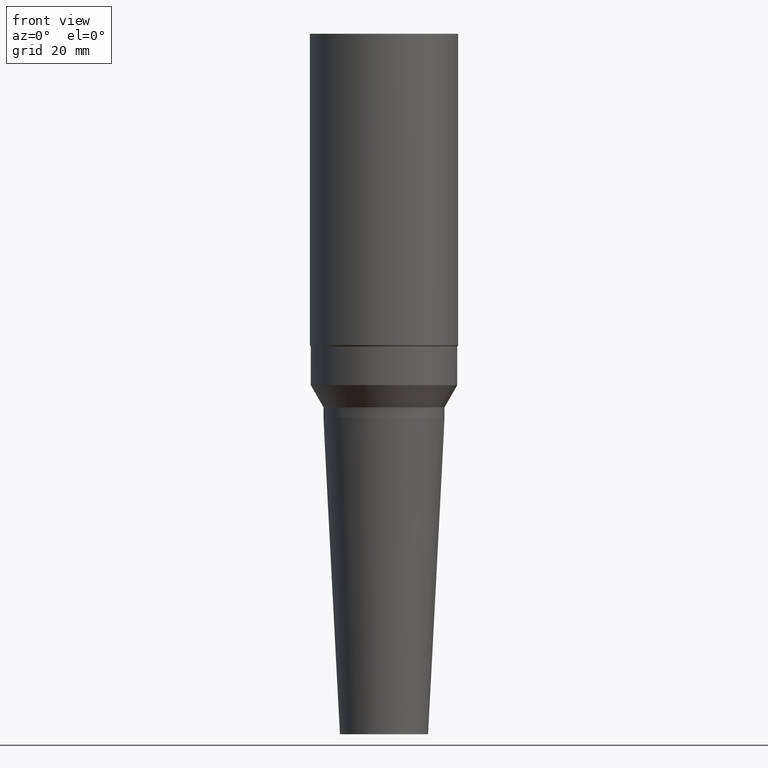
[diagram: clean part render]
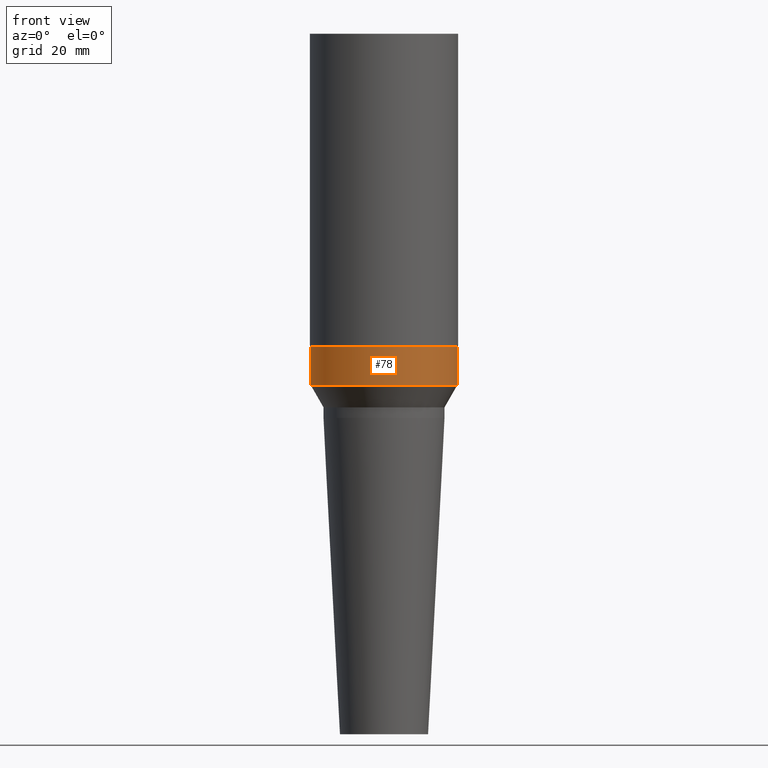
[diagram: same view with one face highlighted and labeled with its STEP entity id]
A machine part, front view. The second image highlights one B-rep face of the part: STEP entity #78.
In plain terms, the highlighted cylindrical surface (bore or boss wall) has radius 15.8 mm, axis along (-0, -0, 1).
Its self-contained STEP definition (entity closure, byte-faithful):
#78=ADVANCED_FACE('',(#92,#93),#94,.T.);
#92=FACE_BOUND('',#114,.T.);
#93=FACE_BOUND('',#115,.T.);
#94=CYLINDRICAL_SURFACE('',#116,15.8);
#114=EDGE_LOOP('',(#142));
#115=EDGE_LOOP('',(#143));
#116=AXIS2_PLACEMENT_3D('',#144,#145,#146);
#142=ORIENTED_EDGE('',*,*,#169,.F.);
#143=ORIENTED_EDGE('',*,*,#168,.T.);
#144=CARTESIAN_POINT('',(-4.83010310203837E-015,-9.66020620407673E-015,78.88156986));
#145=DIRECTION('',(-6.12323399573677E-017,-1.22464679914735E-016,1.0));
#146=DIRECTION('',(-1.23259516440783E-032,1.0,1.22464679914735E-016));
#168=EDGE_CURVE('',#177,#177,#178,.T.);
#169=EDGE_CURVE('',#179,#179,#180,.T.);
#177=VERTEX_POINT('',#191);
#178=CIRCLE('',#192,15.8);
#179=VERTEX_POINT('',#193);
#180=CIRCLE('',#194,15.8);
#191=CARTESIAN_POINT('',(-5.08228421646152E-015,15.8,83.0));
#192=AXIS2_PLACEMENT_3D('',#207,#208,#209);
#193=CARTESIAN_POINT('',(-4.57792198761522E-015,15.8,74.76313972));
#194=AXIS2_PLACEMENT_3D('',#210,#211,#212);
#207=CARTESIAN_POINT('',(-5.08228421646152E-015,-1.0164568432923E-014,83.0));
#208=DIRECTION('',(6.12323399573677E-017,1.22464679914735E-016,-1.0));
#209=DIRECTION('',(-1.23259516440783E-032,1.0,1.22464679914735E-016));
#210=CARTESIAN_POINT('',(-4.57792198761522E-015,-9.15584397523043E-015,74.76313972));
#211=DIRECTION('',(6.12323399573677E-017,1.22464679914735E-016,-1.0));
#212=DIRECTION('',(-1.23259516440783E-032,1.0,1.22464679914735E-016));